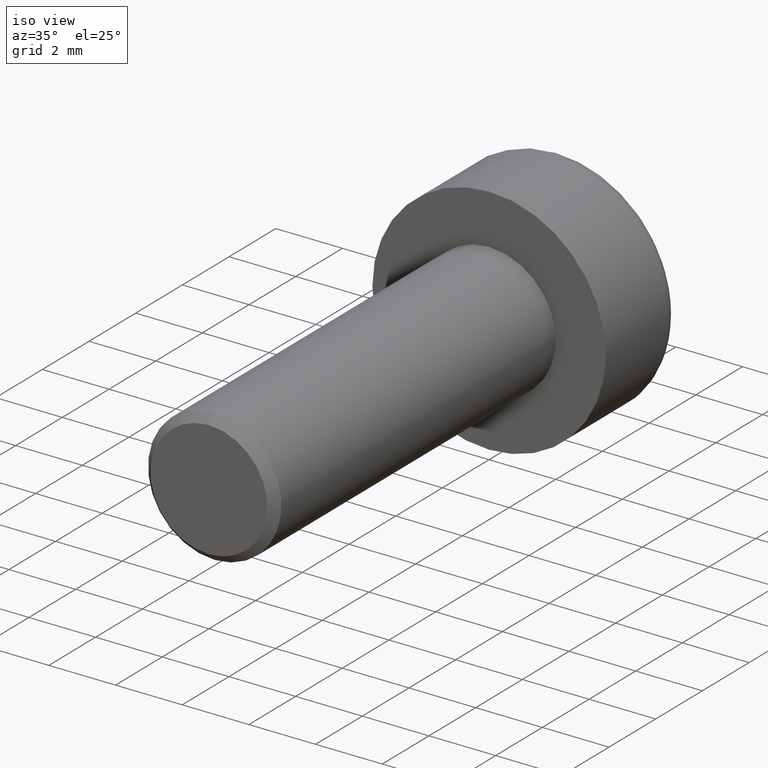
[diagram: clean part render]
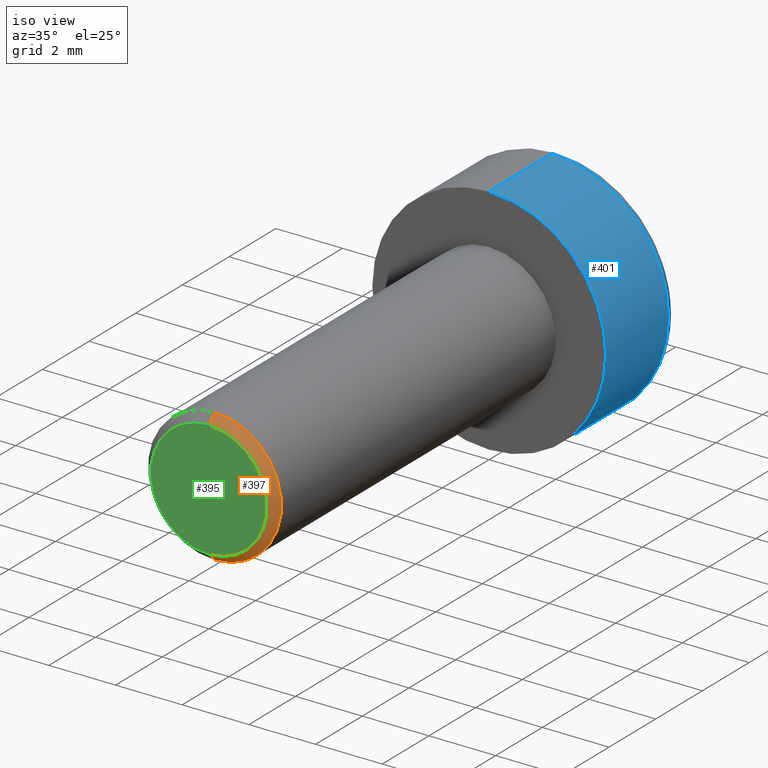
[diagram: same view with three faces highlighted in distinct colors, each labeled with its STEP entity id]
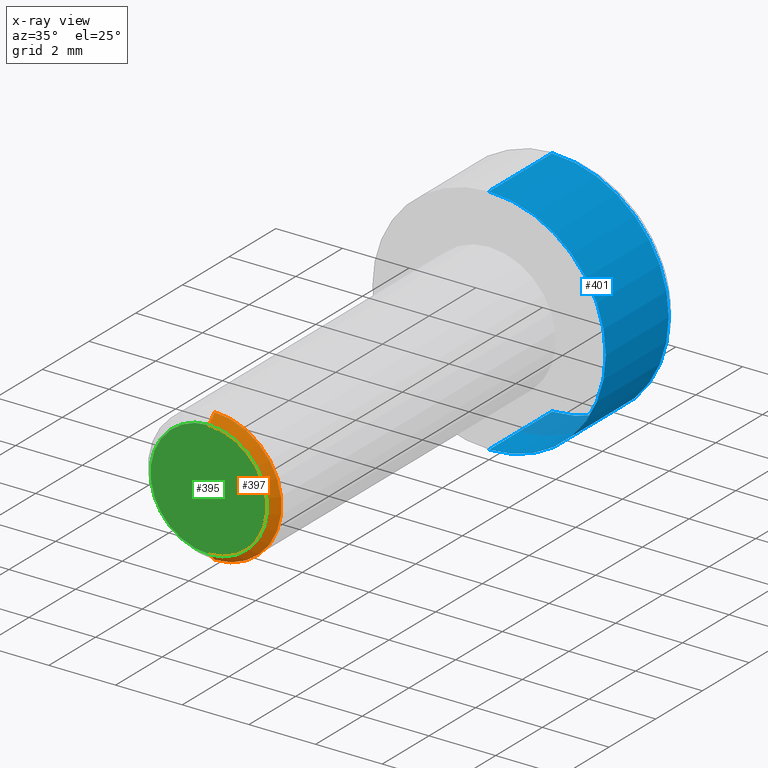
[diagram: x-ray of the same camera — body ghosted, the three highlighted faces saturated]
A machine part, iso view with three faces highlighted in distinct colors.
The next image is the same camera in x-ray (body ghosted, the three faces saturated) — at least one of them is partly hidden behind the body in this view.
Their STEP definitions:

[orange] entity #397 — the highlighted conical surface has half-angle 45 deg.
#26 = CARTESIAN_POINT ( 'NONE',  ( 2.143131898507872000E-016, -12.00000000000000000, -1.750000000000003300 ) ) ;
#31 = DIRECTION ( 'NONE',  ( 0.0000000000000000000, 0.0000000000000000000, -1.000000000000000000 ) ) ;
#32 = DIRECTION ( 'NONE',  ( 0.0000000000000000000, -1.000000000000000000, 0.0000000000000000000 ) ) ;
#39 = DIRECTION ( 'NONE',  ( 0.0000000000000000000, 0.0000000000000000000, 1.000000000000000000 ) ) ;
#40 = CARTESIAN_POINT ( 'NONE',  ( 0.0000000000000000000, -11.75000000000000200, 2.000000000000000000 ) ) ;
#41 = CARTESIAN_POINT ( 'NONE',  ( 0.0000000000000000000, -12.00000000000000000, 0.0000000000000000000 ) ) ;
#78 = DIRECTION ( 'NONE',  ( 8.659560562354904500E-017, 0.7071067811865500200, -0.7071067811865451300 ) ) ;
#88 = CARTESIAN_POINT ( 'NONE',  ( 0.0000000000000000000, -12.00000000000000000, 0.0000000000000000000 ) ) ;
#97 = CARTESIAN_POINT ( 'NONE',  ( 2.449293598294706400E-016, -11.75000000000000200, -2.000000000000000000 ) ) ;
#106 = CARTESIAN_POINT ( 'NONE',  ( 2.296212748401289000E-016, -12.00000000000000000, -1.750000000000003300 ) ) ;
#108 = CARTESIAN_POINT ( 'NONE',  ( 0.0000000000000000000, -12.00000000000000000, 1.750000000000003300 ) ) ;
#124 = DIRECTION ( 'NONE',  ( 0.0000000000000000000, 0.7071067811865500200, 0.7071067811865451300 ) ) ;
#158 = DIRECTION ( 'NONE',  ( 0.0000000000000000000, 1.000000000000000000, 0.0000000000000000000 ) ) ;
#179 = CARTESIAN_POINT ( 'NONE',  ( 0.0000000000000000000, -12.00000000000000000, 1.750000000000003300 ) ) ;
#183 = DIRECTION ( 'NONE',  ( 0.0000000000000000000, 0.0000000000000000000, -1.000000000000000000 ) ) ;
#184 = DIRECTION ( 'NONE',  ( 0.0000000000000000000, 1.000000000000000000, 0.0000000000000000000 ) ) ;
#187 = CARTESIAN_POINT ( 'NONE',  ( 0.0000000000000000000, -11.75000000000000200, 0.0000000000000000000 ) ) ;
#229 = CONICAL_SURFACE ( 'NONE', #451, 1.750000000000003300, 0.7853981633974447300 ) ;
#231 = FACE_OUTER_BOUND ( 'NONE', #540, .T. ) ;
#289 = VECTOR ( 'NONE', #124, 1000.000000000000100 ) ;
#291 = LINE ( 'NONE', #108, #289 ) ;
#297 = VECTOR ( 'NONE', #78, 1000.000000000000100 ) ;
#302 = CIRCLE ( 'NONE', #471, 1.750000000000003300 ) ;
#304 = LINE ( 'NONE', #26, #297 ) ;
#305 = CIRCLE ( 'NONE', #464, 2.000000000000000000 ) ;
#334 = VERTEX_POINT ( 'NONE', #97 ) ;
#335 = VERTEX_POINT ( 'NONE', #40 ) ;
#354 = VERTEX_POINT ( 'NONE', #106 ) ;
#355 = VERTEX_POINT ( 'NONE', #179 ) ;
#397 = ADVANCED_FACE ( 'NONE', ( #231 ), #229, .T. ) ;
#418 = EDGE_CURVE ( 'NONE', #335, #334, #305, .T. ) ;
#423 = EDGE_CURVE ( 'NONE', #355, #335, #291, .T. ) ;
#425 = EDGE_CURVE ( 'NONE', #354, #355, #302, .T. ) ;
#427 = EDGE_CURVE ( 'NONE', #354, #334, #304, .T. ) ;
#451 = AXIS2_PLACEMENT_3D ( 'NONE', #88, #158, #39 ) ;
#464 = AXIS2_PLACEMENT_3D ( 'NONE', #187, #184, #183 ) ;
#471 = AXIS2_PLACEMENT_3D ( 'NONE', #41, #32, #31 ) ;
#540 = EDGE_LOOP ( 'NONE', ( #551, #556, #552, #559 ) ) ;
#551 = ORIENTED_EDGE ( 'NONE', *, *, #425, .F. ) ;
#552 = ORIENTED_EDGE ( 'NONE', *, *, #418, .F. ) ;
#556 = ORIENTED_EDGE ( 'NONE', *, *, #427, .T. ) ;
#559 = ORIENTED_EDGE ( 'NONE', *, *, #423, .F. ) ;

[blue] entity #401 — the highlighted cylindrical surface (partial cylindrical patch) has radius 3.5 mm, axis along (-0, -1, -0).
#11 = DIRECTION ( 'NONE',  ( -0.0000000000000000000, -1.000000000000000000, -0.0000000000000000000 ) ) ;
#22 = DIRECTION ( 'NONE',  ( 0.0000000000000000000, 0.0000000000000000000, -1.000000000000000000 ) ) ;
#28 = CARTESIAN_POINT ( 'NONE',  ( 0.0000000000000000000, 3.000000000000000000, -3.500000000000000000 ) ) ;
#50 = DIRECTION ( 'NONE',  ( -0.0000000000000000000, -1.000000000000000000, -0.0000000000000000000 ) ) ;
#70 = CARTESIAN_POINT ( 'NONE',  ( 0.0000000000000000000, 0.0000000000000000000, -3.500000000000000000 ) ) ;
#99 = CARTESIAN_POINT ( 'NONE',  ( 0.0000000000000000000, 2.700000000000000200, -3.500000000000000000 ) ) ;
#142 = CARTESIAN_POINT ( 'NONE',  ( 4.286263797015736600E-016, 0.0000000000000000000, 3.500000000000000000 ) ) ;
#155 = DIRECTION ( 'NONE',  ( 0.0000000000000000000, 0.0000000000000000000, 1.000000000000000000 ) ) ;
#156 = DIRECTION ( 'NONE',  ( -0.0000000000000000000, -1.000000000000000000, -0.0000000000000000000 ) ) ;
#157 = CARTESIAN_POINT ( 'NONE',  ( 0.0000000000000000000, 2.700000000000000200, 0.0000000000000000000 ) ) ;
#170 = CARTESIAN_POINT ( 'NONE',  ( 4.286263797015736600E-016, 2.700000000000000200, 3.500000000000000000 ) ) ;
#190 = CARTESIAN_POINT ( 'NONE',  ( 0.0000000000000000000, 3.000000000000000000, 0.0000000000000000000 ) ) ;
#194 = DIRECTION ( 'NONE',  ( 0.0000000000000000000, 0.0000000000000000000, 1.000000000000000000 ) ) ;
#197 = DIRECTION ( 'NONE',  ( 0.0000000000000000000, 1.000000000000000000, 0.0000000000000000000 ) ) ;
#198 = CARTESIAN_POINT ( 'NONE',  ( 0.0000000000000000000, 0.0000000000000000000, 0.0000000000000000000 ) ) ;
#204 = CARTESIAN_POINT ( 'NONE',  ( 4.286263797015736600E-016, 3.000000000000000000, 3.500000000000000000 ) ) ;
#205 = DIRECTION ( 'NONE',  ( -0.0000000000000000000, -1.000000000000000000, -0.0000000000000000000 ) ) ;
#211 = FACE_OUTER_BOUND ( 'NONE', #528, .T. ) ;
#226 = CYLINDRICAL_SURFACE ( 'NONE', #457, 3.500000000000000000 ) ;
#236 = VERTEX_POINT ( 'NONE', #70 ) ;
#241 = VERTEX_POINT ( 'NONE', #99 ) ;
#288 = CIRCLE ( 'NONE', #473, 3.500000000000000000 ) ;
#290 = LINE ( 'NONE', #204, #295 ) ;
#293 = CIRCLE ( 'NONE', #476, 3.500000000000000000 ) ;
#295 = VECTOR ( 'NONE', #205, 1000.000000000000000 ) ;
#301 = LINE ( 'NONE', #28, #303 ) ;
#303 = VECTOR ( 'NONE', #11, 1000.000000000000000 ) ;
#337 = VERTEX_POINT ( 'NONE', #170 ) ;
#357 = VERTEX_POINT ( 'NONE', #142 ) ;
#401 = ADVANCED_FACE ( 'NONE', ( #211 ), #226, .T. ) ;
#428 = EDGE_CURVE ( 'NONE', #241, #236, #301, .T. ) ;
#429 = EDGE_CURVE ( 'NONE', #357, #236, #288, .T. ) ;
#432 = EDGE_CURVE ( 'NONE', #337, #357, #290, .T. ) ;
#434 = EDGE_CURVE ( 'NONE', #241, #337, #293, .T. ) ;
#457 = AXIS2_PLACEMENT_3D ( 'NONE', #190, #50, #22 ) ;
#473 = AXIS2_PLACEMENT_3D ( 'NONE', #198, #197, #194 ) ;
#476 = AXIS2_PLACEMENT_3D ( 'NONE', #157, #156, #155 ) ;
#528 = EDGE_LOOP ( 'NONE', ( #542, #543, #550, #545 ) ) ;
#542 = ORIENTED_EDGE ( 'NONE', *, *, #434, .T. ) ;
#543 = ORIENTED_EDGE ( 'NONE', *, *, #432, .T. ) ;
#545 = ORIENTED_EDGE ( 'NONE', *, *, #428, .F. ) ;
#550 = ORIENTED_EDGE ( 'NONE', *, *, #429, .T. ) ;

[green] entity #395 — the highlighted planar face has unit normal (0, -1, 0).
#18 = PLANE ( 'NONE',  #452 ) ;
#31 = DIRECTION ( 'NONE',  ( 0.0000000000000000000, 0.0000000000000000000, -1.000000000000000000 ) ) ;
#32 = DIRECTION ( 'NONE',  ( 0.0000000000000000000, -1.000000000000000000, 0.0000000000000000000 ) ) ;
#41 = CARTESIAN_POINT ( 'NONE',  ( 0.0000000000000000000, -12.00000000000000000, 0.0000000000000000000 ) ) ;
#61 = DIRECTION ( 'NONE',  ( 0.0000000000000000000, 0.0000000000000000000, -1.000000000000000000 ) ) ;
#62 = DIRECTION ( 'NONE',  ( 0.0000000000000000000, -1.000000000000000000, 0.0000000000000000000 ) ) ;
#66 = DIRECTION ( 'NONE',  ( 0.0000000000000000000, -1.000000000000000000, 0.0000000000000000000 ) ) ;
#71 = CARTESIAN_POINT ( 'NONE',  ( 0.0000000000000000000, -12.00000000000000000, 0.0000000000000000000 ) ) ;
#106 = CARTESIAN_POINT ( 'NONE',  ( 2.296212748401289000E-016, -12.00000000000000000, -1.750000000000003300 ) ) ;
#176 = DIRECTION ( 'NONE',  ( 0.0000000000000000000, -0.0000000000000000000, -1.000000000000000000 ) ) ;
#179 = CARTESIAN_POINT ( 'NONE',  ( 0.0000000000000000000, -12.00000000000000000, 1.750000000000003300 ) ) ;
#203 = CARTESIAN_POINT ( 'NONE',  ( 0.0000000000000000000, -12.00000000000000000, 0.0000000000000000000 ) ) ;
#212 = FACE_OUTER_BOUND ( 'NONE', #523, .T. ) ;
#302 = CIRCLE ( 'NONE', #471, 1.750000000000003300 ) ;
#339 = ORIENTED_EDGE ( 'NONE', *, *, #448, .T. ) ;
#346 = ORIENTED_EDGE ( 'NONE', *, *, #425, .T. ) ;
#354 = VERTEX_POINT ( 'NONE', #106 ) ;
#355 = VERTEX_POINT ( 'NONE', #179 ) ;
#395 = ADVANCED_FACE ( 'NONE', ( #212 ), #18, .T. ) ;
#425 = EDGE_CURVE ( 'NONE', #354, #355, #302, .T. ) ;
#448 = EDGE_CURVE ( 'NONE', #355, #354, #517, .T. ) ;
#452 = AXIS2_PLACEMENT_3D ( 'NONE', #203, #62, #176 ) ;
#471 = AXIS2_PLACEMENT_3D ( 'NONE', #41, #32, #31 ) ;
#480 = AXIS2_PLACEMENT_3D ( 'NONE', #71, #66, #61 ) ;
#517 = CIRCLE ( 'NONE', #480, 1.750000000000003300 ) ;
#523 = EDGE_LOOP ( 'NONE', ( #339, #346 ) ) ;